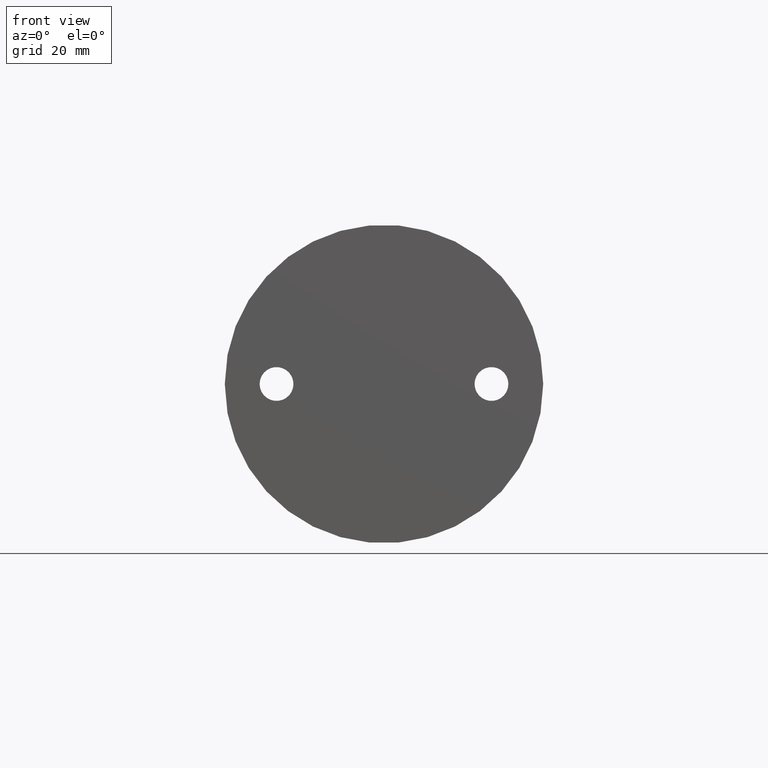
[diagram: clean part render]
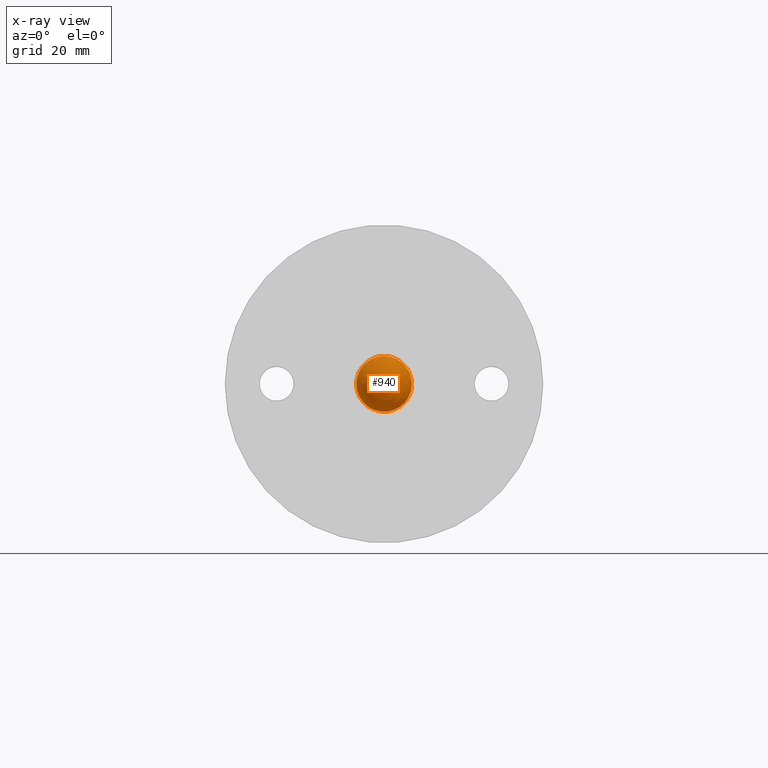
[diagram: x-ray — body ghosted, one internal face saturated and labeled with its STEP entity id]
A machine part, front view, then the same camera in x-ray: the body is ghosted and one INTERNAL B-rep face — a face not visible from any outside direction — is saturated and labeled: STEP entity #940.
In plain terms, the highlighted spherical surface has radius 7 mm.
Its self-contained STEP definition (entity closure, byte-faithful):
#136=SPHERICAL_SURFACE('',#1062,7.);
#139=FACE_OUTER_BOUND('',#194,.T.);
#194=EDGE_LOOP('',(#636,#637,#638,#639,#640));
#303=CIRCLE('',#1059,7.);
#304=CIRCLE('',#1060,7.);
#305=CIRCLE('',#1061,7.);
#306=CIRCLE('',#1063,7.);
#376=VERTEX_POINT('',#1482);
#377=VERTEX_POINT('',#1484);
#378=VERTEX_POINT('',#1486);
#379=VERTEX_POINT('',#1490);
#481=EDGE_CURVE('',#376,#377,#303,.T.);
#482=EDGE_CURVE('',#377,#378,#304,.T.);
#483=EDGE_CURVE('',#378,#376,#305,.T.);
#484=EDGE_CURVE('',#379,#378,#306,.T.);
#636=ORIENTED_EDGE('',*,*,#482,.F.);
#637=ORIENTED_EDGE('',*,*,#481,.F.);
#638=ORIENTED_EDGE('',*,*,#483,.F.);
#639=ORIENTED_EDGE('',*,*,#484,.F.);
#640=ORIENTED_EDGE('',*,*,#484,.T.);
#940=ADVANCED_FACE('',(#139),#136,.F.);
#1059=AXIS2_PLACEMENT_3D('',#1485,#1197,#1198);
#1060=AXIS2_PLACEMENT_3D('',#1487,#1199,#1200);
#1061=AXIS2_PLACEMENT_3D('',#1488,#1201,#1202);
#1062=AXIS2_PLACEMENT_3D('',#1489,#1203,#1204);
#1063=AXIS2_PLACEMENT_3D('',#1491,#1205,#1206);
#1197=DIRECTION('center_axis',(0.,-1.,0.));
#1198=DIRECTION('ref_axis',(1.,0.,0.));
#1199=DIRECTION('center_axis',(0.,-1.,0.));
#1200=DIRECTION('ref_axis',(1.,0.,0.));
#1201=DIRECTION('center_axis',(0.,-1.,0.));
#1202=DIRECTION('ref_axis',(1.,0.,0.));
#1203=DIRECTION('center_axis',(0.,1.,-6.12323399573677E-17));
#1204=DIRECTION('ref_axis',(0.,0.,-1.));
#1205=DIRECTION('center_axis',(-1.,0.,1.22464679914737E-16));
#1206=DIRECTION('ref_axis',(1.22464679914737E-16,0.,1.));
#1482=CARTESIAN_POINT('',(-7.,20.,-8.57252759403147E-16));
#1484=CARTESIAN_POINT('',(7.,20.,0.));
#1485=CARTESIAN_POINT('Origin',(0.,20.,0.));
#1486=CARTESIAN_POINT('',(2.32616309149905E-13,20.,7.));
#1487=CARTESIAN_POINT('Origin',(0.,20.,0.));
#1488=CARTESIAN_POINT('Origin',(0.,20.,0.));
#1489=CARTESIAN_POINT('Origin',(2.31759056390501E-13,19.9999999999998,0.));
#1490=CARTESIAN_POINT('',(2.31759056390501E-13,12.9999999999998,4.28626379701574E-16));
#1491=CARTESIAN_POINT('Origin',(2.31759056390501E-13,19.9999999999998,0.));